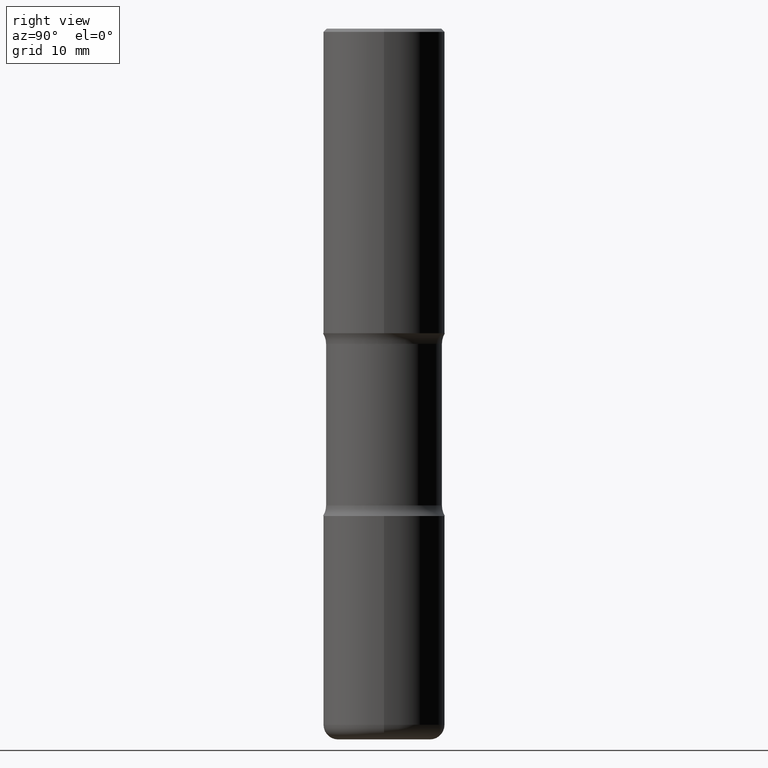
[diagram: clean part render]
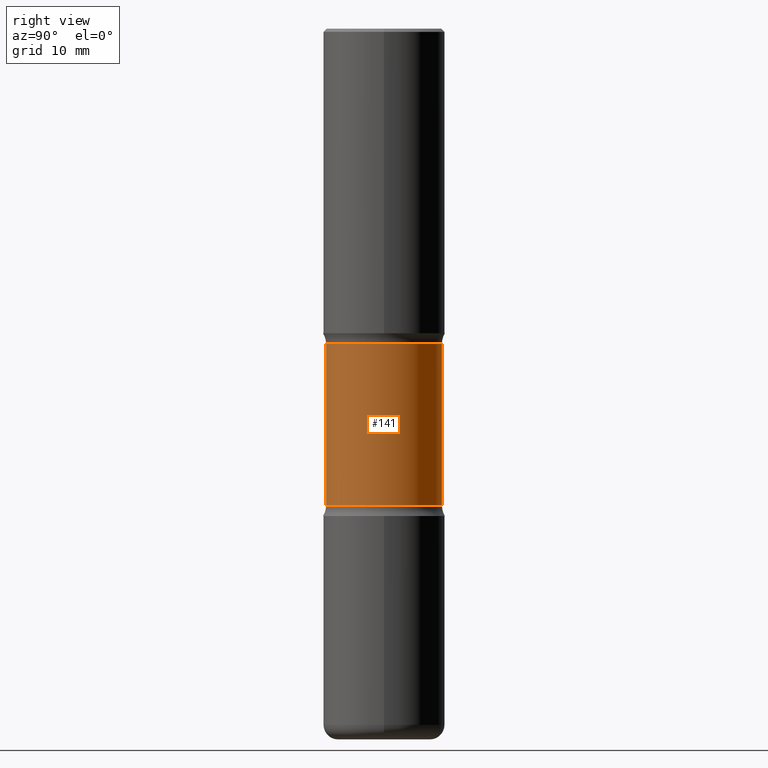
[diagram: same view with one face highlighted and labeled with its STEP entity id]
A machine part, right view. The second image highlights one B-rep face of the part: STEP entity #141.
In plain terms, the highlighted cylindrical surface (partial cylindrical patch) has radius 9.0551 mm, axis along (0, -0, -1).
Its self-contained STEP definition (entity closure, byte-faithful):
#4 = VERTEX_POINT ( 'NONE', #487 ) ;
#10 = DIRECTION ( 'NONE',  ( 2.497495331405690228E-29, -3.416976393561393039E-15, -1.000000000000000000 ) ) ;
#35 = CARTESIAN_POINT ( 'NONE',  ( 2.489426194595200956E-15, 0.3564999999999931557, -1.940442723048481977 ) ) ;
#60 = EDGE_CURVE ( 'NONE', #560, #4, #381, .T. ) ;
#82 = ORIENTED_EDGE ( 'NONE', *, *, #299, .F. ) ;
#112 = DIRECTION ( 'NONE',  ( 2.497495331405690228E-29, -3.416976393561393039E-15, -1.000000000000000000 ) ) ;
#135 = DIRECTION ( 'NONE',  ( 2.497495331405690228E-29, -3.416976393561393039E-15, -1.000000000000000000 ) ) ;
#141 = ADVANCED_FACE ( 'NONE', ( #362 ), #264, .T. ) ;
#164 = CARTESIAN_POINT ( 'NONE',  ( 4.690167066012064720E-29, -6.853961813559904754E-15, -1.940442723048480866 ) ) ;
#165 = ORIENTED_EDGE ( 'NONE', *, *, #60, .F. ) ;
#182 = CARTESIAN_POINT ( 'NONE',  ( -2.509227142684892896E-15, -0.3565000000000068114, -1.940442723048479756 ) ) ;
#204 = VERTEX_POINT ( 'NONE', #182 ) ;
#221 = CARTESIAN_POINT ( 'NONE',  ( 7.172963523267356402E-29, -1.025082777674240497E-14, -2.934557276951519800 ) ) ;
#229 = DIRECTION ( 'NONE',  ( 6.982962677686266711E-15, 1.000000000000000000, -3.065187089665372450E-15 ) ) ;
#239 = CARTESIAN_POINT ( 'NONE',  ( 2.489426194595261699E-15, 0.3564999999999848290, -4.375000000000000888 ) ) ;
#247 = AXIS2_PLACEMENT_3D ( 'NONE', #221, #135, #476 ) ;
#263 = VERTEX_POINT ( 'NONE', #35 ) ;
#264 = CYLINDRICAL_SURFACE ( 'NONE', #444, 0.3564999999999999836 ) ;
#275 = CIRCLE ( 'NONE', #383, 0.3564999999999999836 ) ;
#283 = LINE ( 'NONE', #516, #522 ) ;
#284 = EDGE_CURVE ( 'NONE', #204, #4, #283, .T. ) ;
#294 = DIRECTION ( 'NONE',  ( 6.982962677686266711E-15, 1.000000000000000000, -3.065187089665372450E-15 ) ) ;
#299 = EDGE_CURVE ( 'NONE', #263, #560, #452, .T. ) ;
#303 = EDGE_LOOP ( 'NONE', ( #305, #508, #165, #82 ) ) ;
#305 = ORIENTED_EDGE ( 'NONE', *, *, #448, .T. ) ;
#313 = DIRECTION ( 'NONE',  ( 2.497495331405690228E-29, -3.416976393561393039E-15, -1.000000000000000000 ) ) ;
#340 = VECTOR ( 'NONE', #112, 39.37007874015748143 ) ;
#358 = CARTESIAN_POINT ( 'NONE',  ( 1.077046249923823256E-28, -1.517278655767635025E-14, -4.375000000000000000 ) ) ;
#362 = FACE_OUTER_BOUND ( 'NONE', #303, .T. ) ;
#381 = CIRCLE ( 'NONE', #247, 0.3564999999999999281 ) ;
#383 = AXIS2_PLACEMENT_3D ( 'NONE', #164, #10, #294 ) ;
#444 = AXIS2_PLACEMENT_3D ( 'NONE', #358, #313, #229 ) ;
#448 = EDGE_CURVE ( 'NONE', #263, #204, #275, .T. ) ;
#452 = LINE ( 'NONE', #239, #340 ) ;
#459 = DIRECTION ( 'NONE',  ( 2.497495331405690228E-29, -3.416976393561393039E-15, -1.000000000000000000 ) ) ;
#476 = DIRECTION ( 'NONE',  ( 6.982962677686265922E-15, 1.000000000000000000, -3.065187089665373239E-15 ) ) ;
#487 = CARTESIAN_POINT ( 'NONE',  ( -2.509227142684864892E-15, -0.3565000000000101976, -2.934557276951518912 ) ) ;
#508 = ORIENTED_EDGE ( 'NONE', *, *, #284, .T. ) ;
#512 = CARTESIAN_POINT ( 'NONE',  ( 2.489426194595225017E-15, 0.3564999999999897140, -2.934557276951521132 ) ) ;
#516 = CARTESIAN_POINT ( 'NONE',  ( -2.445767536205443313E-15, -0.3565000000000151936, -4.374999999999998224 ) ) ;
#522 = VECTOR ( 'NONE', #459, 39.37007874015748143 ) ;
#560 = VERTEX_POINT ( 'NONE', #512 ) ;